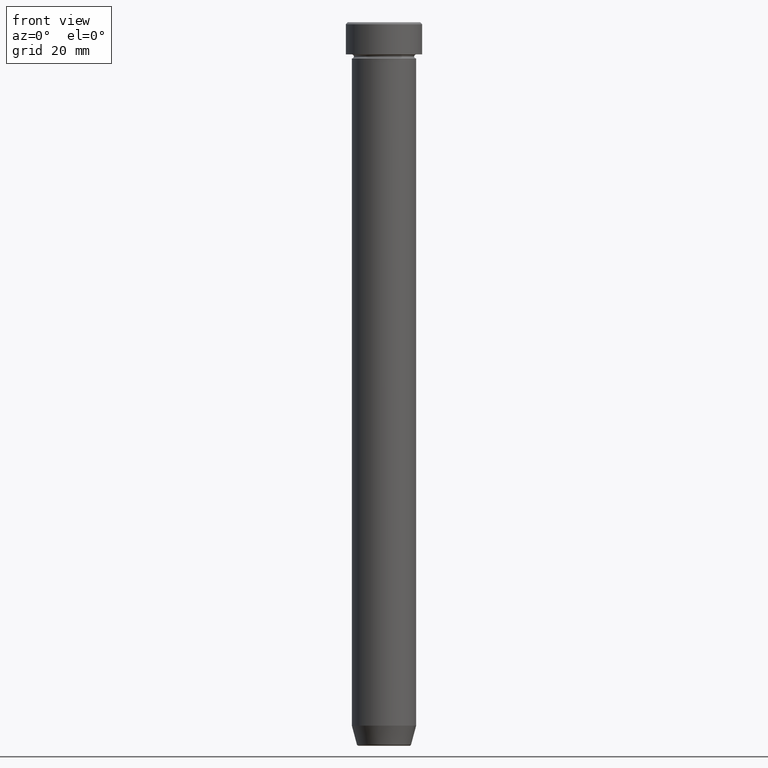
[diagram: clean part render]
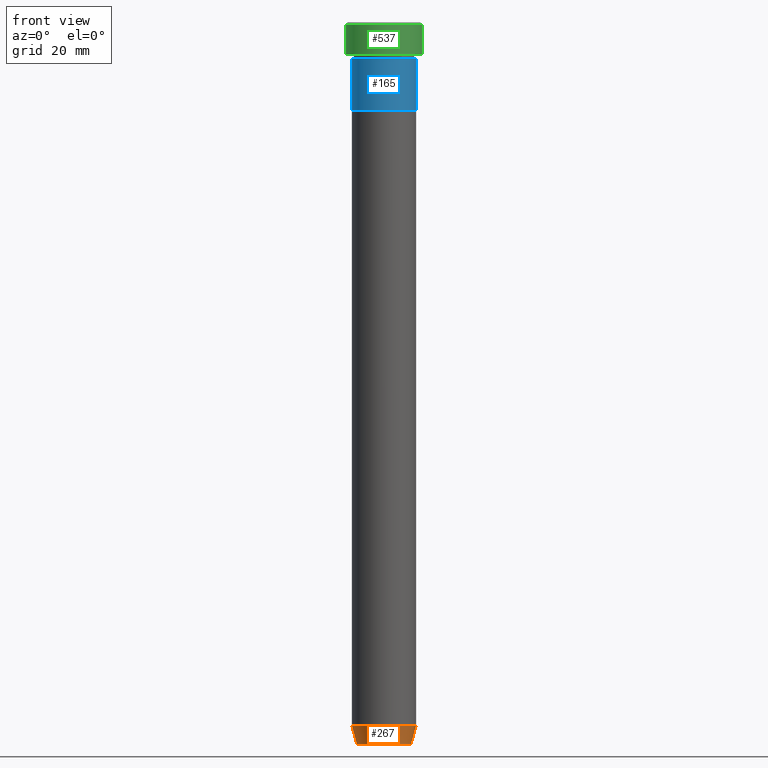
[diagram: same view with three faces highlighted in distinct colors, each labeled with its STEP entity id]
A machine part, front view with three faces highlighted in distinct colors.
Their STEP definitions:

[orange] entity #267 — the highlighted conical surface has half-angle 15 deg.
#10 = CIRCLE ( 'NONE', #136, 8.000000000000000000 ) ;
#26 = ORIENTED_EDGE ( 'NONE', *, *, #437, .T. ) ;
#44 = VERTEX_POINT ( 'NONE', #557 ) ;
#51 = VECTOR ( 'NONE', #581, 999.9999999999998863 ) ;
#66 = FACE_OUTER_BOUND ( 'NONE', #551, .T. ) ;
#77 = CARTESIAN_POINT ( 'NONE',  ( 0.000000000000000000, 0.000000000000000000, -179.6294095225512422 ) ) ;
#84 = VERTEX_POINT ( 'NONE', #289 ) ;
#136 = AXIS2_PLACEMENT_3D ( 'NONE', #592, #180, #170 ) ;
#158 = EDGE_CURVE ( 'NONE', #393, #380, #317, .T. ) ;
#164 = CARTESIAN_POINT ( 'NONE',  ( 0.000000000000000000, 0.000000000000000000, -180.0000000000000000 ) ) ;
#170 = DIRECTION ( 'NONE',  ( 1.000000000000000000, 0.000000000000000000, 0.000000000000000000 ) ) ;
#172 = CARTESIAN_POINT ( 'NONE',  ( -8.000000000000000000, 9.797174393178825657E-16, -175.0000000000000000 ) ) ;
#180 = DIRECTION ( 'NONE',  ( -0.000000000000000000, -0.000000000000000000, 1.000000000000000000 ) ) ;
#183 = ORIENTED_EDGE ( 'NONE', *, *, #382, .F. ) ;
#190 = CARTESIAN_POINT ( 'NONE',  ( -6.660254037844388186, 8.156458788954364706E-16, -180.0000000000000000 ) ) ;
#203 = AXIS2_PLACEMENT_3D ( 'NONE', #77, #376, #415 ) ;
#214 = LINE ( 'NONE', #386, #51 ) ;
#223 = ORIENTED_EDGE ( 'NONE', *, *, #318, .T. ) ;
#228 = ORIENTED_EDGE ( 'NONE', *, *, #158, .F. ) ;
#257 = CARTESIAN_POINT ( 'NONE',  ( -6.759553456999441323, 9.037619948979308185E-16, -179.6294095225512422 ) ) ;
#267 = ADVANCED_FACE ( 'NONE', ( #66 ), #392, .T. ) ;
#289 = CARTESIAN_POINT ( 'NONE',  ( 8.000000000000000000, 0.000000000000000000, -175.0000000000000000 ) ) ;
#300 = DIRECTION ( 'NONE',  ( -0.000000000000000000, -0.000000000000000000, 1.000000000000000000 ) ) ;
#317 = LINE ( 'NONE', #190, #363 ) ;
#318 = EDGE_CURVE ( 'NONE', #393, #44, #520, .T. ) ;
#338 = DIRECTION ( 'NONE',  ( 1.000000000000000000, 0.000000000000000000, 0.000000000000000000 ) ) ;
#339 = AXIS2_PLACEMENT_3D ( 'NONE', #164, #300, #338 ) ;
#363 = VECTOR ( 'NONE', #457, 999.9999999999998863 ) ;
#376 = DIRECTION ( 'NONE',  ( -0.000000000000000000, -0.000000000000000000, 1.000000000000000000 ) ) ;
#380 = VERTEX_POINT ( 'NONE', #172 ) ;
#382 = EDGE_CURVE ( 'NONE', #380, #84, #10, .T. ) ;
#386 = CARTESIAN_POINT ( 'NONE',  ( 6.660254037844388186, 0.000000000000000000, -180.0000000000000000 ) ) ;
#392 = CONICAL_SURFACE ( 'NONE', #339, 6.660254037844388186, 0.2617993877991489082 ) ;
#393 = VERTEX_POINT ( 'NONE', #257 ) ;
#415 = DIRECTION ( 'NONE',  ( -1.000000000000000000, 0.000000000000000000, 0.000000000000000000 ) ) ;
#437 = EDGE_CURVE ( 'NONE', #44, #84, #214, .T. ) ;
#457 = DIRECTION ( 'NONE',  ( -0.2588190451025202954, 3.169619151431758778E-17, 0.9659258262890684232 ) ) ;
#520 = CIRCLE ( 'NONE', #203, 6.759553456999441323 ) ;
#551 = EDGE_LOOP ( 'NONE', ( #228, #223, #26, #183 ) ) ;
#557 = CARTESIAN_POINT ( 'NONE',  ( 6.759553456999441323, 0.000000000000000000, -179.6294095225512422 ) ) ;
#581 = DIRECTION ( 'NONE',  ( 0.2588190451025202954, 0.000000000000000000, 0.9659258262890684232 ) ) ;
#592 = CARTESIAN_POINT ( 'NONE',  ( 0.000000000000000000, 0.000000000000000000, -175.0000000000000000 ) ) ;

[blue] entity #165 — the highlighted cylindrical surface (edge-blend (fillet) strip) has radius 8 mm, axis along (-0, -0, 1).
#4 = DIRECTION ( 'NONE',  ( 1.000000000000000000, 0.000000000000000000, 0.000000000000000000 ) ) ;
#14 = CARTESIAN_POINT ( 'NONE',  ( -8.000000000000000000, 9.797174393178825657E-16, 0.000000000000000000 ) ) ;
#29 = AXIS2_PLACEMENT_3D ( 'NONE', #368, #559, #4 ) ;
#59 = EDGE_CURVE ( 'NONE', #308, #585, #406, .T. ) ;
#102 = DIRECTION ( 'NONE',  ( -0.000000000000000000, -0.000000000000000000, 1.000000000000000000 ) ) ;
#112 = EDGE_LOOP ( 'NONE', ( #534, #594, #276, #504 ) ) ;
#118 = EDGE_CURVE ( 'NONE', #436, #401, #146, .T. ) ;
#119 = CARTESIAN_POINT ( 'NONE',  ( 8.000000000000000000, 0.000000000000000000, -22.00000000000000000 ) ) ;
#126 = CIRCLE ( 'NONE', #305, 8.000000000000000000 ) ;
#146 = LINE ( 'NONE', #14, #248 ) ;
#148 = CIRCLE ( 'NONE', #459, 8.000000000000000000 ) ;
#155 = CARTESIAN_POINT ( 'NONE',  ( 0.000000000000000000, 0.000000000000000000, -22.00000000000000000 ) ) ;
#165 = ADVANCED_FACE ( 'NONE', ( #454 ), #275, .T. ) ;
#243 = EDGE_CURVE ( 'NONE', #436, #308, #148, .T. ) ;
#248 = VECTOR ( 'NONE', #508, 1000.000000000000000 ) ;
#275 = CYLINDRICAL_SURFACE ( 'NONE', #29, 8.000000000000000000 ) ;
#276 = ORIENTED_EDGE ( 'NONE', *, *, #59, .T. ) ;
#302 = DIRECTION ( 'NONE',  ( -0.000000000000000000, -0.000000000000000000, 1.000000000000000000 ) ) ;
#304 = VECTOR ( 'NONE', #102, 1000.000000000000000 ) ;
#305 = AXIS2_PLACEMENT_3D ( 'NONE', #307, #302, #535 ) ;
#307 = CARTESIAN_POINT ( 'NONE',  ( 0.000000000000000000, 0.000000000000000000, -9.000000000000001776 ) ) ;
#308 = VERTEX_POINT ( 'NONE', #119 ) ;
#348 = CARTESIAN_POINT ( 'NONE',  ( -8.000000000000000000, 9.797174393178825657E-16, -9.000000000000001776 ) ) ;
#368 = CARTESIAN_POINT ( 'NONE',  ( 0.000000000000000000, 0.000000000000000000, 0.000000000000000000 ) ) ;
#401 = VERTEX_POINT ( 'NONE', #348 ) ;
#406 = LINE ( 'NONE', #546, #304 ) ;
#426 = EDGE_CURVE ( 'NONE', #401, #585, #126, .T. ) ;
#436 = VERTEX_POINT ( 'NONE', #492 ) ;
#454 = FACE_OUTER_BOUND ( 'NONE', #112, .T. ) ;
#459 = AXIS2_PLACEMENT_3D ( 'NONE', #155, #466, #568 ) ;
#466 = DIRECTION ( 'NONE',  ( -0.000000000000000000, -0.000000000000000000, 1.000000000000000000 ) ) ;
#492 = CARTESIAN_POINT ( 'NONE',  ( -8.000000000000000000, 9.797174393178825657E-16, -22.00000000000000000 ) ) ;
#504 = ORIENTED_EDGE ( 'NONE', *, *, #426, .F. ) ;
#507 = CARTESIAN_POINT ( 'NONE',  ( 8.000000000000000000, 0.000000000000000000, -9.000000000000001776 ) ) ;
#508 = DIRECTION ( 'NONE',  ( -0.000000000000000000, -0.000000000000000000, 1.000000000000000000 ) ) ;
#534 = ORIENTED_EDGE ( 'NONE', *, *, #118, .F. ) ;
#535 = DIRECTION ( 'NONE',  ( 1.000000000000000000, 0.000000000000000000, 0.000000000000000000 ) ) ;
#546 = CARTESIAN_POINT ( 'NONE',  ( 8.000000000000000000, 0.000000000000000000, 0.000000000000000000 ) ) ;
#559 = DIRECTION ( 'NONE',  ( -0.000000000000000000, -0.000000000000000000, 1.000000000000000000 ) ) ;
#568 = DIRECTION ( 'NONE',  ( 1.000000000000000000, 0.000000000000000000, 0.000000000000000000 ) ) ;
#585 = VERTEX_POINT ( 'NONE', #507 ) ;
#594 = ORIENTED_EDGE ( 'NONE', *, *, #243, .T. ) ;

[green] entity #537 — the highlighted cylindrical surface (partial cylindrical patch) has radius 9.5 mm, axis along (-0, -0, 1).
#21 = DIRECTION ( 'NONE',  ( -0.000000000000000000, -0.000000000000000000, 1.000000000000000000 ) ) ;
#33 = ORIENTED_EDGE ( 'NONE', *, *, #175, .F. ) ;
#40 = VERTEX_POINT ( 'NONE', #452 ) ;
#49 = EDGE_CURVE ( 'NONE', #273, #40, #589, .T. ) ;
#56 = CYLINDRICAL_SURFACE ( 'NONE', #90, 9.500000000000000000 ) ;
#58 = CARTESIAN_POINT ( 'NONE',  ( 9.500000000000000000, 0.000000000000000000, -8.000000000000000000 ) ) ;
#68 = LINE ( 'NONE', #378, #241 ) ;
#90 = AXIS2_PLACEMENT_3D ( 'NONE', #362, #237, #145 ) ;
#105 = CARTESIAN_POINT ( 'NONE',  ( 0.000000000000000000, 0.000000000000000000, -0.4999999999999968914 ) ) ;
#121 = VERTEX_POINT ( 'NONE', #58 ) ;
#145 = DIRECTION ( 'NONE',  ( 1.000000000000000000, 0.000000000000000000, 0.000000000000000000 ) ) ;
#159 = DIRECTION ( 'NONE',  ( 1.000000000000000000, 0.000000000000000000, 0.000000000000000000 ) ) ;
#175 = EDGE_CURVE ( 'NONE', #448, #40, #233, .T. ) ;
#188 = DIRECTION ( 'NONE',  ( -0.000000000000000000, -0.000000000000000000, 1.000000000000000000 ) ) ;
#191 = FACE_OUTER_BOUND ( 'NONE', #277, .T. ) ;
#225 = EDGE_CURVE ( 'NONE', #121, #273, #68, .T. ) ;
#233 = LINE ( 'NONE', #500, #313 ) ;
#237 = DIRECTION ( 'NONE',  ( -0.000000000000000000, -0.000000000000000000, 1.000000000000000000 ) ) ;
#241 = VECTOR ( 'NONE', #575, 1000.000000000000000 ) ;
#249 = CIRCLE ( 'NONE', #578, 9.500000000000000000 ) ;
#254 = EDGE_CURVE ( 'NONE', #448, #121, #249, .T. ) ;
#273 = VERTEX_POINT ( 'NONE', #523 ) ;
#277 = EDGE_LOOP ( 'NONE', ( #33, #433, #572, #542 ) ) ;
#291 = CARTESIAN_POINT ( 'NONE',  ( 0.000000000000000000, 0.000000000000000000, -8.000000000000000000 ) ) ;
#313 = VECTOR ( 'NONE', #188, 1000.000000000000000 ) ;
#361 = DIRECTION ( 'NONE',  ( 0.000000000000000000, 0.000000000000000000, -1.000000000000000000 ) ) ;
#362 = CARTESIAN_POINT ( 'NONE',  ( 0.000000000000000000, 0.000000000000000000, 0.000000000000000000 ) ) ;
#378 = CARTESIAN_POINT ( 'NONE',  ( 9.500000000000000000, 0.000000000000000000, 0.000000000000000000 ) ) ;
#410 = DIRECTION ( 'NONE',  ( 1.000000000000000000, 0.000000000000000000, 0.000000000000000000 ) ) ;
#433 = ORIENTED_EDGE ( 'NONE', *, *, #254, .T. ) ;
#435 = CARTESIAN_POINT ( 'NONE',  ( -9.500000000000000000, 1.163414459189985485E-15, -8.000000000000000000 ) ) ;
#448 = VERTEX_POINT ( 'NONE', #435 ) ;
#452 = CARTESIAN_POINT ( 'NONE',  ( -9.500000000000000000, 1.163414459189985485E-15, -0.4999999999999968914 ) ) ;
#458 = AXIS2_PLACEMENT_3D ( 'NONE', #105, #361, #410 ) ;
#500 = CARTESIAN_POINT ( 'NONE',  ( -9.500000000000000000, 1.163414459189985485E-15, 0.000000000000000000 ) ) ;
#523 = CARTESIAN_POINT ( 'NONE',  ( 9.500000000000000000, 0.000000000000000000, -0.4999999999999968914 ) ) ;
#537 = ADVANCED_FACE ( 'NONE', ( #191 ), #56, .T. ) ;
#542 = ORIENTED_EDGE ( 'NONE', *, *, #49, .T. ) ;
#572 = ORIENTED_EDGE ( 'NONE', *, *, #225, .T. ) ;
#575 = DIRECTION ( 'NONE',  ( -0.000000000000000000, -0.000000000000000000, 1.000000000000000000 ) ) ;
#578 = AXIS2_PLACEMENT_3D ( 'NONE', #291, #21, #159 ) ;
#589 = CIRCLE ( 'NONE', #458, 9.500000000000000000 ) ;